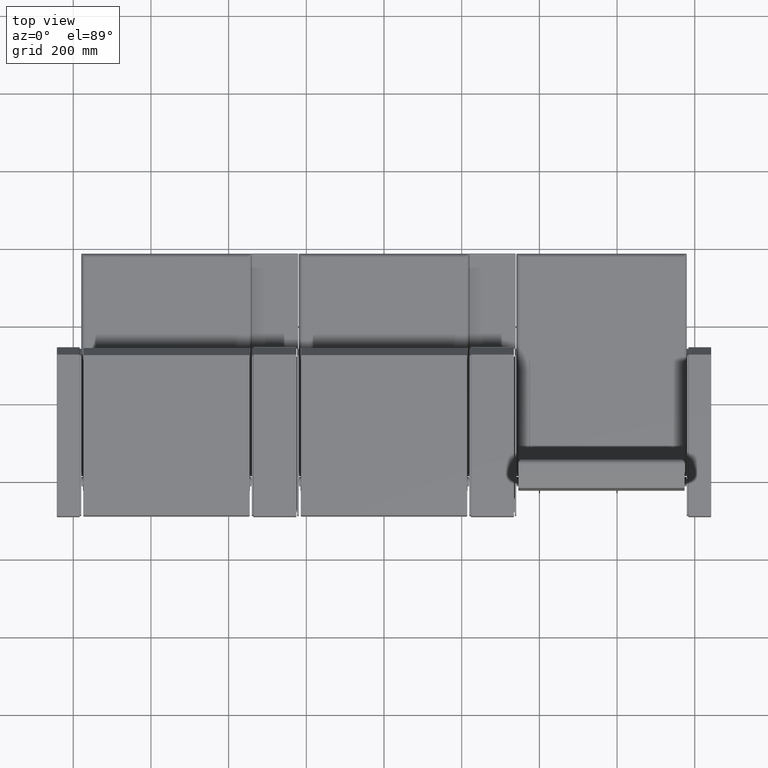
[diagram: clean part render]
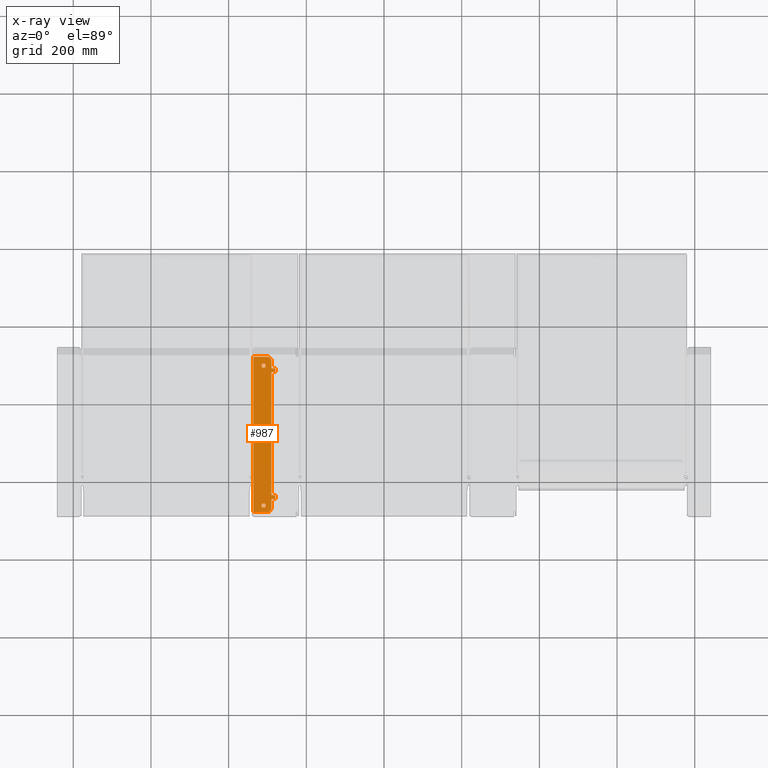
[diagram: x-ray — body ghosted, one internal face saturated and labeled with its STEP entity id]
A machine part, top view, then the same camera in x-ray: the body is ghosted and one INTERNAL B-rep face — a face not visible from any outside direction — is saturated and labeled: STEP entity #987.
In plain terms, the highlighted planar face has unit normal (0, 0, 1).
Its self-contained STEP definition (entity closure, byte-faithful):
#5 = EDGE_LOOP ( 'NONE', ( #6315, #6314 ) ) ;
#8 = EDGE_LOOP ( 'NONE', ( #6331, #6330, #6329, #6328, #6327, #6326, #6325, #6324, #6323, #6322, #6321, #6320, #6319, #6318 ) ) ;
#11 = EDGE_LOOP ( 'NONE', ( #6317, #6316 ) ) ;
#63 = CARTESIAN_POINT ( 'NONE',  ( 219.4999999999999400, -91.99999999999997200, -59.10000000000000100 ) ) ;
#68 = CARTESIAN_POINT ( 'NONE',  ( 219.5000000000000000, 308.0000000000000600, -59.10000000000000100 ) ) ;
#69 = DIRECTION ( 'NONE',  ( -1.000000000000000000, -0.0000000000000000000, -0.0000000000000000000 ) ) ;
#72 = CARTESIAN_POINT ( 'NONE',  ( 270.0000000000000000, 308.0000000000000600, -59.10000000000000100 ) ) ;
#74 = DIRECTION ( 'NONE',  ( 0.0000000000000000000, -1.000000000000000000, 0.0000000000000000000 ) ) ;
#78 = DIRECTION ( 'NONE',  ( 1.000000000000000000, 0.0000000000000000000, 0.0000000000000000000 ) ) ;
#79 = DIRECTION ( 'NONE',  ( -1.000000000000000000, 0.0000000000000000000, 0.0000000000000000000 ) ) ;
#83 = CARTESIAN_POINT ( 'NONE',  ( 270.0000000000000000, -47.99999999999998600, -59.10000000000000100 ) ) ;
#84 = CARTESIAN_POINT ( 'NONE',  ( 270.0000000000000000, 268.0000000000000000, -59.10000000000000100 ) ) ;
#85 = CARTESIAN_POINT ( 'NONE',  ( 270.0000000000000000, -57.99999999999999300, -59.10000000000000100 ) ) ;
#86 = CARTESIAN_POINT ( 'NONE',  ( 260.0000000000000000, -81.99999999999995700, -59.10000000000000100 ) ) ;
#87 = DIRECTION ( 'NONE',  ( -0.0000000000000000000, 0.0000000000000000000, 1.000000000000000000 ) ) ;
#88 = DIRECTION ( 'NONE',  ( 1.000000000000000000, 0.0000000000000000000, 0.0000000000000000000 ) ) ;
#89 = CARTESIAN_POINT ( 'NONE',  ( 280.0000000000000000, -57.99999999999999300, -59.10000000000000100 ) ) ;
#90 = CARTESIAN_POINT ( 'NONE',  ( 280.0000000000000000, 278.0000000000000000, -59.10000000000000100 ) ) ;
#91 = DIRECTION ( 'NONE',  ( 0.0000000000000000000, -1.000000000000000000, 0.0000000000000000000 ) ) ;
#92 = DIRECTION ( 'NONE',  ( 1.000000000000000000, 0.0000000000000000000, 0.0000000000000000000 ) ) ;
#93 = CARTESIAN_POINT ( 'NONE',  ( 270.0000000000000000, 278.0000000000000000, -59.10000000000000100 ) ) ;
#94 = DIRECTION ( 'NONE',  ( -1.000000000000000000, 0.0000000000000000000, 0.0000000000000000000 ) ) ;
#95 = DIRECTION ( 'NONE',  ( 0.0000000000000000000, -1.000000000000000000, 0.0000000000000000000 ) ) ;
#96 = DIRECTION ( 'NONE',  ( 0.0000000000000000000, 1.000000000000000000, 0.0000000000000000000 ) ) ;
#97 = DIRECTION ( 'NONE',  ( 1.000000000000000000, 0.0000000000000000000, 0.0000000000000000000 ) ) ;
#98 = CARTESIAN_POINT ( 'NONE',  ( 223.5000000000000000, -0.0000000000000000000, -59.10000000000000100 ) ) ;
#100 = CARTESIAN_POINT ( 'NONE',  ( 260.0000000000000000, 298.0000000000000600, -59.10000000000000100 ) ) ;
#101 = DIRECTION ( 'NONE',  ( -0.0000000000000000000, 0.0000000000000000000, 1.000000000000000000 ) ) ;
#102 = DIRECTION ( 'NONE',  ( 1.000000000000000000, 0.0000000000000000000, 0.0000000000000000000 ) ) ;
#103 = CARTESIAN_POINT ( 'NONE',  ( 250.0000000000000000, -74.99999999999995700, -59.10000000000000100 ) ) ;
#104 = DIRECTION ( 'NONE',  ( 0.0000000000000000000, 0.0000000000000000000, -1.000000000000000000 ) ) ;
#105 = DIRECTION ( 'NONE',  ( -1.000000000000000000, 0.0000000000000000000, 0.0000000000000000000 ) ) ;
#107 = CARTESIAN_POINT ( 'NONE',  ( 250.0000000000000000, 285.0000000000000600, -59.10000000000000100 ) ) ;
#108 = DIRECTION ( 'NONE',  ( 0.0000000000000000000, 0.0000000000000000000, -1.000000000000000000 ) ) ;
#109 = DIRECTION ( 'NONE',  ( -1.000000000000000000, 0.0000000000000000000, 0.0000000000000000000 ) ) ;
#326 = EDGE_CURVE ( 'NONE', #6667, #6668, #7821, .T. ) ;
#412 = EDGE_CURVE ( 'NONE', #6720, #6723, #3297, .T. ) ;
#414 = EDGE_CURVE ( 'NONE', #6722, #6707, #3299, .T. ) ;
#417 = EDGE_CURVE ( 'NONE', #6726, #6721, #3301, .T. ) ;
#420 = EDGE_CURVE ( 'NONE', #6720, #6707, #3312, .T. ) ;
#421 = EDGE_CURVE ( 'NONE', #6718, #6722, #3308, .T. ) ;
#422 = EDGE_CURVE ( 'NONE', #6724, #6718, #3315, .T. ) ;
#423 = EDGE_CURVE ( 'NONE', #6648, #6724, #3314, .T. ) ;
#424 = EDGE_CURVE ( 'NONE', #6725, #6654, #3317, .T. ) ;
#425 = EDGE_CURVE ( 'NONE', #6729, #6725, #3319, .T. ) ;
#426 = EDGE_CURVE ( 'NONE', #6668, #6729, #3321, .T. ) ;
#427 = EDGE_CURVE ( 'NONE', #6667, #6721, #3323, .T. ) ;
#428 = EDGE_CURVE ( 'NONE', #6723, #6726, #3327, .T. ) ;
#429 = EDGE_CURVE ( 'NONE', #6628, #6627, #3328, .T. ) ;
#430 = EDGE_CURVE ( 'NONE', #6632, #6631, #3325, .T. ) ;
#987 = ADVANCED_FACE ( 'NONE', ( #3511, #3513, #3501 ), #3811, .T. ) ;
#1216 = CARTESIAN_POINT ( 'NONE',  ( 250.0000000000000000, -74.99999999999995700, -59.10000000000000100 ) ) ;
#1217 = DIRECTION ( 'NONE',  ( 0.0000000000000000000, 0.0000000000000000000, -1.000000000000000000 ) ) ;
#1218 = DIRECTION ( 'NONE',  ( -1.000000000000000000, 0.0000000000000000000, 0.0000000000000000000 ) ) ;
#1226 = CARTESIAN_POINT ( 'NONE',  ( 250.0000000000000000, 285.0000000000000600, -59.10000000000000100 ) ) ;
#1227 = DIRECTION ( 'NONE',  ( 0.0000000000000000000, 0.0000000000000000000, -1.000000000000000000 ) ) ;
#1228 = DIRECTION ( 'NONE',  ( -1.000000000000000000, 0.0000000000000000000, 0.0000000000000000000 ) ) ;
#1269 = CARTESIAN_POINT ( 'NONE',  ( 270.0000000000000000, 308.0000000000000600, -59.10000000000000100 ) ) ;
#1270 = DIRECTION ( 'NONE',  ( 0.0000000000000000000, -1.000000000000000000, 0.0000000000000000000 ) ) ;
#1445 = CARTESIAN_POINT ( 'NONE',  ( 255.5000000000000000, -74.99999999999995700, -59.10000000000000100 ) ) ;
#1446 = CARTESIAN_POINT ( 'NONE',  ( 244.5000000000000000, -74.99999999999995700, -59.10000000000000100 ) ) ;
#1449 = CARTESIAN_POINT ( 'NONE',  ( 255.5000000000000000, 285.0000000000000600, -59.10000000000000100 ) ) ;
#1450 = CARTESIAN_POINT ( 'NONE',  ( 244.5000000000000000, 285.0000000000000600, -59.10000000000000100 ) ) ;
#1466 = CARTESIAN_POINT ( 'NONE',  ( 270.0000000000000000, -47.99999999999998600, -59.10000000000000100 ) ) ;
#1472 = CARTESIAN_POINT ( 'NONE',  ( 270.0000000000000000, 268.0000000000000000, -59.10000000000000100 ) ) ;
#1485 = CARTESIAN_POINT ( 'NONE',  ( 270.0000000000000000, 298.0000000000000600, -59.10000000000000100 ) ) ;
#1486 = CARTESIAN_POINT ( 'NONE',  ( 270.0000000000000000, 278.0000000000000000, -59.10000000000000100 ) ) ;
#1525 = CARTESIAN_POINT ( 'NONE',  ( 270.0000000000000000, -81.99999999999995700, -59.10000000000000100 ) ) ;
#1536 = CARTESIAN_POINT ( 'NONE',  ( 280.0000000000000000, -57.99999999999999300, -59.10000000000000100 ) ) ;
#1538 = CARTESIAN_POINT ( 'NONE',  ( 260.0000000000000000, -91.99999999999997200, -59.10000000000000100 ) ) ;
#1539 = CARTESIAN_POINT ( 'NONE',  ( 260.0000000000000000, 308.0000000000000600, -59.10000000000000100 ) ) ;
#1540 = CARTESIAN_POINT ( 'NONE',  ( 270.0000000000000000, -57.99999999999999300, -59.10000000000000100 ) ) ;
#1541 = CARTESIAN_POINT ( 'NONE',  ( 223.5000000000000000, -91.99999999999997200, -59.10000000000000100 ) ) ;
#1542 = CARTESIAN_POINT ( 'NONE',  ( 280.0000000000000000, -47.99999999999998600, -59.10000000000000100 ) ) ;
#1543 = CARTESIAN_POINT ( 'NONE',  ( 280.0000000000000000, 268.0000000000000000, -59.10000000000000100 ) ) ;
#1544 = CARTESIAN_POINT ( 'NONE',  ( 223.5000000000000000, 308.0000000000000600, -59.10000000000000100 ) ) ;
#1547 = CARTESIAN_POINT ( 'NONE',  ( 280.0000000000000000, 278.0000000000000000, -59.10000000000000100 ) ) ;
#1756 = CARTESIAN_POINT ( 'NONE',  ( 270.0000000000000000, 308.0000000000000600, -59.10000000000000100 ) ) ;
#1765 = DIRECTION ( 'NONE',  ( 0.0000000000000000000, -1.000000000000000000, 0.0000000000000000000 ) ) ;
#2133 = AXIS2_PLACEMENT_3D ( 'NONE', #86, #87, #88 ) ;
#2134 = AXIS2_PLACEMENT_3D ( 'NONE', #100, #101, #102 ) ;
#2135 = AXIS2_PLACEMENT_3D ( 'NONE', #103, #104, #105 ) ;
#2136 = AXIS2_PLACEMENT_3D ( 'NONE', #107, #108, #109 ) ;
#2203 = AXIS2_PLACEMENT_3D ( 'NONE', #3810, #3806, #3812 ) ;
#3264 = EDGE_CURVE ( 'NONE', #6627, #6628, #4343, .T. ) ;
#3268 = EDGE_CURVE ( 'NONE', #6631, #6632, #4349, .T. ) ;
#3289 = EDGE_CURVE ( 'NONE', #6654, #6648, #4389, .T. ) ;
#3297 = LINE ( 'NONE', #63, #3298 ) ;
#3298 = VECTOR ( 'NONE', #69, 1000.000000000000000 ) ;
#3299 = LINE ( 'NONE', #72, #3302 ) ;
#3301 = LINE ( 'NONE', #68, #3309 ) ;
#3302 = VECTOR ( 'NONE', #74, 1000.000000000000000 ) ;
#3308 = LINE ( 'NONE', #85, #3316 ) ;
#3309 = VECTOR ( 'NONE', #78, 1000.000000000000000 ) ;
#3312 = CIRCLE ( 'NONE', #2133, 10.00000000000000900 ) ;
#3314 = LINE ( 'NONE', #83, #3320 ) ;
#3315 = LINE ( 'NONE', #89, #3318 ) ;
#3316 = VECTOR ( 'NONE', #79, 1000.000000000000000 ) ;
#3317 = LINE ( 'NONE', #84, #3322 ) ;
#3318 = VECTOR ( 'NONE', #91, 1000.000000000000000 ) ;
#3319 = LINE ( 'NONE', #90, #3324 ) ;
#3320 = VECTOR ( 'NONE', #92, 1000.000000000000000 ) ;
#3321 = LINE ( 'NONE', #93, #3326 ) ;
#3322 = VECTOR ( 'NONE', #94, 1000.000000000000000 ) ;
#3323 = CIRCLE ( 'NONE', #2134, 10.00000000000000900 ) ;
#3324 = VECTOR ( 'NONE', #95, 1000.000000000000000 ) ;
#3325 = CIRCLE ( 'NONE', #2136, 5.500000000000005300 ) ;
#3326 = VECTOR ( 'NONE', #97, 1000.000000000000000 ) ;
#3327 = LINE ( 'NONE', #98, #3329 ) ;
#3328 = CIRCLE ( 'NONE', #2135, 5.500000000000005300 ) ;
#3329 = VECTOR ( 'NONE', #96, 1000.000000000000000 ) ;
#3501 = FACE_BOUND ( 'NONE', #5, .T. ) ;
#3511 = FACE_OUTER_BOUND ( 'NONE', #8, .T. ) ;
#3513 = FACE_BOUND ( 'NONE', #11, .T. ) ;
#3806 = DIRECTION ( 'NONE',  ( -0.0000000000000000000, 0.0000000000000000000, 1.000000000000000000 ) ) ;
#3810 = CARTESIAN_POINT ( 'NONE',  ( 0.0000000000000000000, 0.0000000000000000000, -59.10000000000000100 ) ) ;
#3811 = PLANE ( 'NONE',  #2203 ) ;
#3812 = DIRECTION ( 'NONE',  ( 1.000000000000000000, 0.0000000000000000000, 0.0000000000000000000 ) ) ;
#4343 = CIRCLE ( 'NONE', #4936, 5.500000000000005300 ) ;
#4349 = CIRCLE ( 'NONE', #4938, 5.500000000000005300 ) ;
#4389 = LINE ( 'NONE', #1269, #4392 ) ;
#4392 = VECTOR ( 'NONE', #1270, 1000.000000000000000 ) ;
#4936 = AXIS2_PLACEMENT_3D ( 'NONE', #1216, #1217, #1218 ) ;
#4938 = AXIS2_PLACEMENT_3D ( 'NONE', #1226, #1227, #1228 ) ;
#6314 = ORIENTED_EDGE ( 'NONE', *, *, #3268, .T. ) ;
#6315 = ORIENTED_EDGE ( 'NONE', *, *, #430, .T. ) ;
#6316 = ORIENTED_EDGE ( 'NONE', *, *, #3264, .T. ) ;
#6317 = ORIENTED_EDGE ( 'NONE', *, *, #429, .T. ) ;
#6318 = ORIENTED_EDGE ( 'NONE', *, *, #428, .F. ) ;
#6319 = ORIENTED_EDGE ( 'NONE', *, *, #417, .F. ) ;
#6320 = ORIENTED_EDGE ( 'NONE', *, *, #427, .T. ) ;
#6321 = ORIENTED_EDGE ( 'NONE', *, *, #326, .F. ) ;
#6322 = ORIENTED_EDGE ( 'NONE', *, *, #426, .F. ) ;
#6323 = ORIENTED_EDGE ( 'NONE', *, *, #425, .F. ) ;
#6324 = ORIENTED_EDGE ( 'NONE', *, *, #424, .F. ) ;
#6325 = ORIENTED_EDGE ( 'NONE', *, *, #3289, .F. ) ;
#6326 = ORIENTED_EDGE ( 'NONE', *, *, #423, .F. ) ;
#6327 = ORIENTED_EDGE ( 'NONE', *, *, #422, .F. ) ;
#6328 = ORIENTED_EDGE ( 'NONE', *, *, #421, .F. ) ;
#6329 = ORIENTED_EDGE ( 'NONE', *, *, #414, .F. ) ;
#6330 = ORIENTED_EDGE ( 'NONE', *, *, #420, .T. ) ;
#6331 = ORIENTED_EDGE ( 'NONE', *, *, #412, .F. ) ;
#6627 = VERTEX_POINT ( 'NONE', #1445 ) ;
#6628 = VERTEX_POINT ( 'NONE', #1446 ) ;
#6631 = VERTEX_POINT ( 'NONE', #1449 ) ;
#6632 = VERTEX_POINT ( 'NONE', #1450 ) ;
#6648 = VERTEX_POINT ( 'NONE', #1466 ) ;
#6654 = VERTEX_POINT ( 'NONE', #1472 ) ;
#6667 = VERTEX_POINT ( 'NONE', #1485 ) ;
#6668 = VERTEX_POINT ( 'NONE', #1486 ) ;
#6707 = VERTEX_POINT ( 'NONE', #1525 ) ;
#6718 = VERTEX_POINT ( 'NONE', #1536 ) ;
#6720 = VERTEX_POINT ( 'NONE', #1538 ) ;
#6721 = VERTEX_POINT ( 'NONE', #1539 ) ;
#6722 = VERTEX_POINT ( 'NONE', #1540 ) ;
#6723 = VERTEX_POINT ( 'NONE', #1541 ) ;
#6724 = VERTEX_POINT ( 'NONE', #1542 ) ;
#6725 = VERTEX_POINT ( 'NONE', #1543 ) ;
#6726 = VERTEX_POINT ( 'NONE', #1544 ) ;
#6729 = VERTEX_POINT ( 'NONE', #1547 ) ;
#7821 = LINE ( 'NONE', #1756, #7828 ) ;
#7828 = VECTOR ( 'NONE', #1765, 1000.000000000000000 ) ;